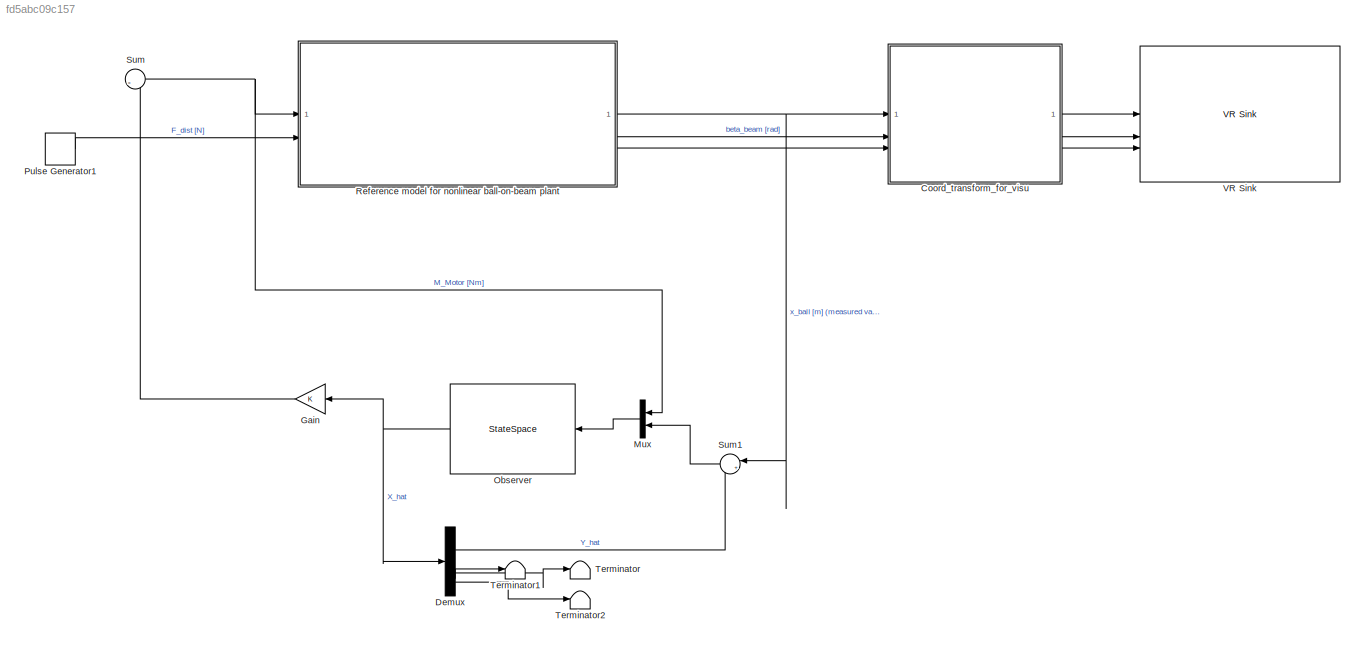
MODEL slx_fd5abc09c157
KIND model
CONFIG AbsTol = auto
CONFIG EnableMultiTasking = off
CONFIG FixedStep = auto
CONFIG MaxStep = auto
CONFIG MinStep = auto
CONFIG RelTol = 1e-3
CONFIG SampleTimeConstraint = Unconstrained
CONFIG SolverName = VariableStepAuto
CONFIG StartTime = 0.0
CONFIG StopTime = 20
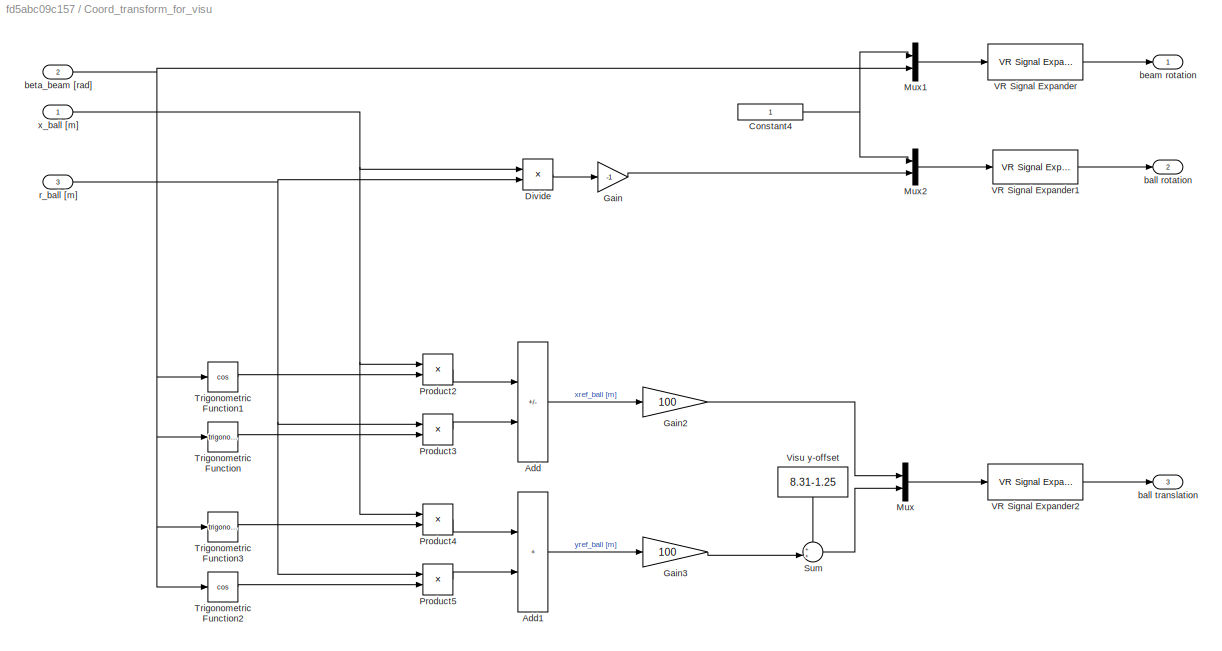
BLOCK [SubSystem] Coord_transform_for_visu
BLOCK [Sum] Coord_transform_for_visu/Add
  IconShape = rectangular
  Inputs = +-
BLOCK [Sum] Coord_transform_for_visu/Add1
  IconShape = rectangular
BLOCK [Constant] Coord_transform_for_visu/Constant4
  NameLocation = top
BLOCK [Product] Coord_transform_for_visu/Divide
  Inputs = */
BLOCK [Gain] Coord_transform_for_visu/Gain
  Gain = -1
BLOCK [Gain] Coord_transform_for_visu/Gain2
  Gain = 100
BLOCK [Gain] Coord_transform_for_visu/Gain3
  Gain = 100
BLOCK [Mux] Coord_transform_for_visu/Mux
  DisplayOption = bar
  Inputs = 2
BLOCK [Mux] Coord_transform_for_visu/Mux1
  DisplayOption = bar
  Inputs = 2
BLOCK [Mux] Coord_transform_for_visu/Mux2
  DisplayOption = bar
  Inputs = 2
BLOCK [Product] Coord_transform_for_visu/Product2
BLOCK [Product] Coord_transform_for_visu/Product3
BLOCK [Product] Coord_transform_for_visu/Product4
BLOCK [Product] Coord_transform_for_visu/Product5
BLOCK [Sum] Coord_transform_for_visu/Sum
  Inputs = ++|
BLOCK [Trigonometry] Coord_transform_for_visu/Trigonometric Function
BLOCK [Trigonometry] Coord_transform_for_visu/Trigonometric Function1
  Operator = cos
BLOCK [Trigonometry] Coord_transform_for_visu/Trigonometric Function2
  Operator = cos
BLOCK [Trigonometry] Coord_transform_for_visu/Trigonometric Function3
BLOCK [Reference] Coord_transform_for_visu/VR Signal Expander  REF=vrlib/VR Signal Expander
  SourceBlock = vrlib/VR Signal Expander
  SourceType = VR Signal Expander
BLOCK [Reference] Coord_transform_for_visu/VR Signal Expander1  REF=vrlib/VR Signal Expander
  SourceBlock = vrlib/VR Signal Expander
  SourceType = VR Signal Expander
BLOCK [Reference] Coord_transform_for_visu/VR Signal Expander2  REF=vrlib/VR Signal Expander
  SourceBlock = vrlib/VR Signal Expander
  SourceType = VR Signal Expander
BLOCK [Constant] Coord_transform_for_visu/Visu y-offset
  NameLocation = left
  Value = 8.31-1.25
BLOCK [Outport] Coord_transform_for_visu/ball rotation
  Port = 2
BLOCK [Outport] Coord_transform_for_visu/ball translation
  Port = 3
BLOCK [Outport] Coord_transform_for_visu/beam rotation
BLOCK [Inport] Coord_transform_for_visu/beta_beam [rad]
  Port = 2
BLOCK [Inport] Coord_transform_for_visu/r_ball [m]
  Port = 3
BLOCK [Inport] Coord_transform_for_visu/x_ball [m]
BLOCK [Demux] Demux
BLOCK [Gain] Gain
  Gain = K
  NameLocation = top
BLOCK [Mux] Mux
  DisplayOption = bar
  Inputs = 2
  NameLocation = top
BLOCK [StateSpace] Observer
  A = A_num
  B = [b_u_num Ll]
  C = eye(4,4)
  D = zeros(4,2)
  InitialCondition = [0,0,0,0]
  NameLocation = top
BLOCK [DiscretePulseGenerator] Pulse Generator1
  Amplitude = 1.25
  Period = 12
  PhaseDelay = 0.25
  PulseType = Time based
  PulseWidth = 0.25
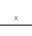
[diagram: Reference model for nonlinear ball-on-beam plant - part 1/4, top center region]
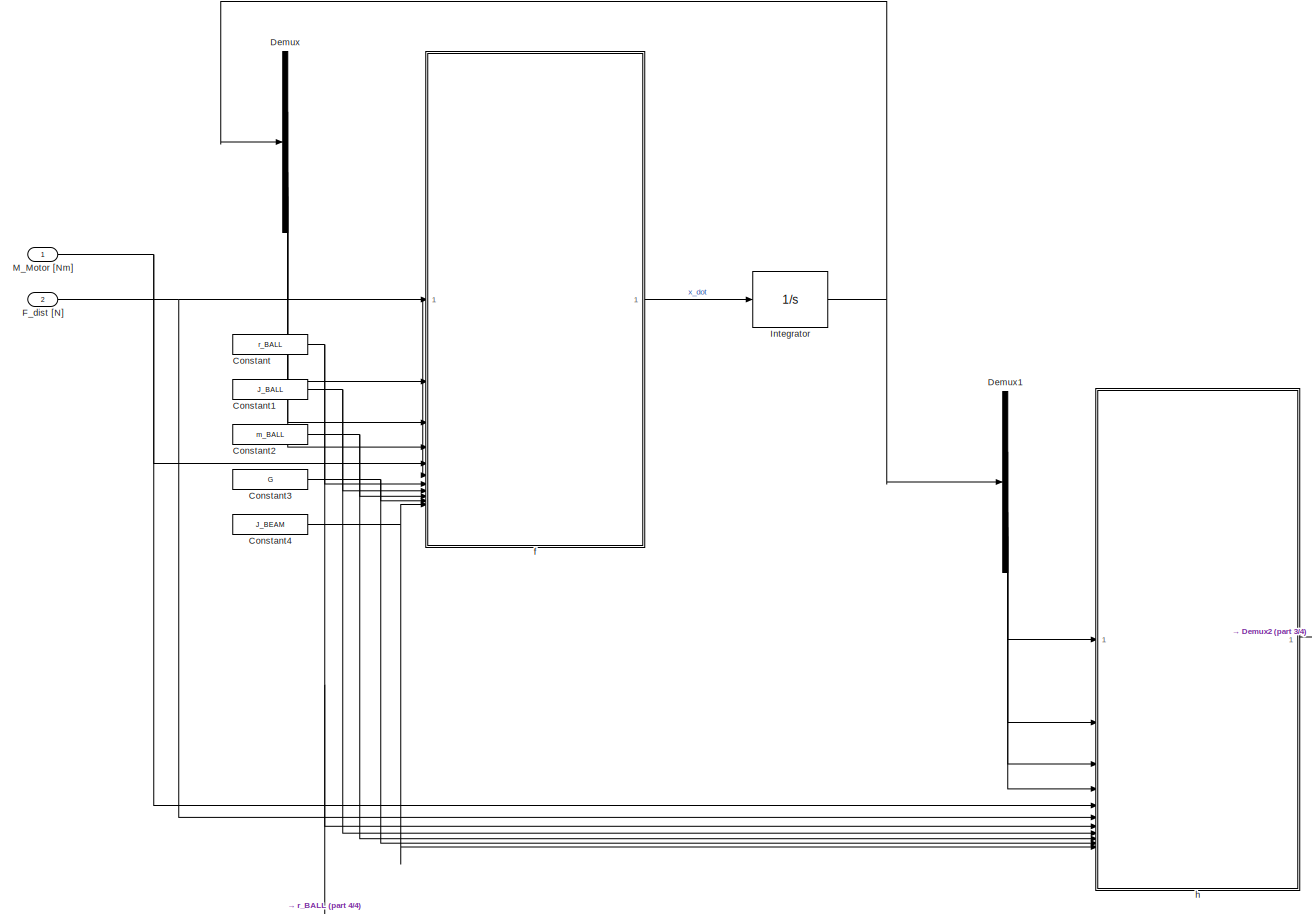
[diagram: Reference model for nonlinear ball-on-beam plant - part 2/4, most of the canvas]
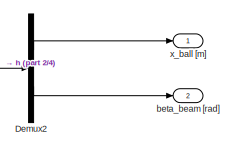
[diagram: Reference model for nonlinear ball-on-beam plant - part 3/4, middle right region]
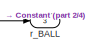
[diagram: Reference model for nonlinear ball-on-beam plant - part 4/4, bottom right region]
BLOCK [SubSystem] Reference model for nonlinear ball-on-beam plant
  MaskHideContents = on
BLOCK [Constant] Reference model for nonlinear ball-on-beam plant/Constant
  Value = r_BALL
BLOCK [Constant] Reference model for nonlinear ball-on-beam plant/Constant1
  Value = J_BALL
BLOCK [Constant] Reference model for nonlinear ball-on-beam plant/Constant2
  Value = m_BALL
BLOCK [Constant] Reference model for nonlinear ball-on-beam plant/Constant3
  Value = G
BLOCK [Constant] Reference model for nonlinear ball-on-beam plant/Constant4
  Value = J_BEAM
BLOCK [Demux] Reference model for nonlinear ball-on-beam plant/Demux
BLOCK [Demux] Reference model for nonlinear ball-on-beam plant/Demux1
BLOCK [Demux] Reference model for nonlinear ball-on-beam plant/Demux2
  Outputs = 2
BLOCK [Inport] Reference model for nonlinear ball-on-beam plant/F_dist [N]
  Port = 2
BLOCK [Integrator] Reference model for nonlinear ball-on-beam plant/Integrator
BLOCK [Inport] Reference model for nonlinear ball-on-beam plant/M_Motor [Nm]
BLOCK [Outport] Reference model for nonlinear ball-on-beam plant/beta_beam [rad]
  Port = 2
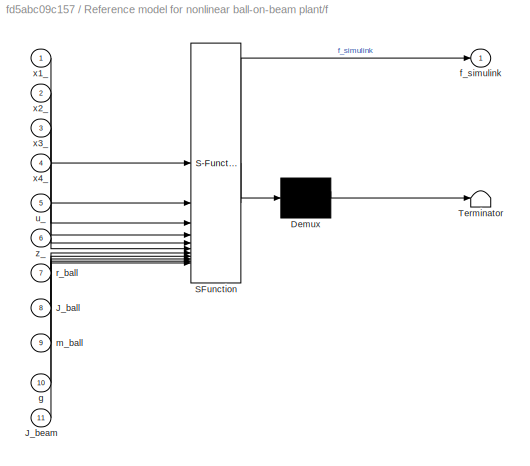
BLOCK [SubSystem] Reference model for nonlinear ball-on-beam plant/f
  ErrorFcn = Stateflow.Translate.translate
  PermitHierarchicalResolution = ExplicitOnly
  SFBlockType = MATLAB Function
  TreatAsAtomicUnit = on
BLOCK [Demux] Reference model for nonlinear ball-on-beam plant/f/ Demux 
  Outputs = 1
BLOCK [S-Function] Reference model for nonlinear ball-on-beam plant/f/ SFunction 
  EnableBusSupport = on
  FunctionName = sf_sfun
  PortCounts = [11 2]
  SFcnIsStateOwnerBlock = off
  SFunctionDeploymentMode = off
  Tag = Stateflow S-Function 2
BLOCK [Terminator] Reference model for nonlinear ball-on-beam plant/f/ Terminator 
BLOCK [Inport] Reference model for nonlinear ball-on-beam plant/f/J_ball
  Port = 8
BLOCK [Inport] Reference model for nonlinear ball-on-beam plant/f/J_beam
  Port = 11
BLOCK [Outport] Reference model for nonlinear ball-on-beam plant/f/f_simulink
BLOCK [Inport] Reference model for nonlinear ball-on-beam plant/f/g
  Port = 10
BLOCK [Inport] Reference model for nonlinear ball-on-beam plant/f/m_ball
  Port = 9
BLOCK [Inport] Reference model for nonlinear ball-on-beam plant/f/r_ball
  Port = 7
BLOCK [Inport] Reference model for nonlinear ball-on-beam plant/f/u_
  Port = 5
BLOCK [Inport] Reference model for nonlinear ball-on-beam plant/f/x1_
BLOCK [Inport] Reference model for nonlinear ball-on-beam plant/f/x2_
  Port = 2
BLOCK [Inport] Reference model for nonlinear ball-on-beam plant/f/x3_
  Port = 3
BLOCK [Inport] Reference model for nonlinear ball-on-beam plant/f/x4_
  Port = 4
BLOCK [Inport] Reference model for nonlinear ball-on-beam plant/f/z_
  Port = 6
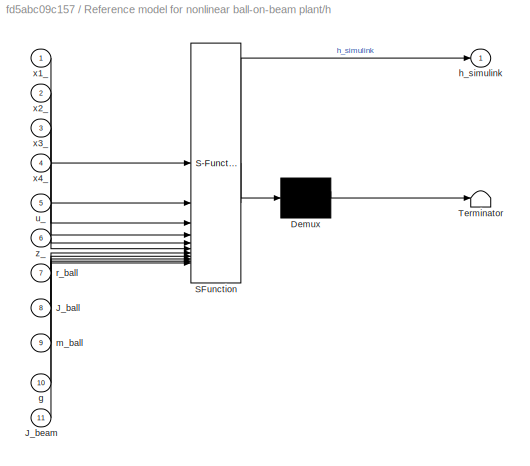
BLOCK [SubSystem] Reference model for nonlinear ball-on-beam plant/h
  ErrorFcn = Stateflow.Translate.translate
  PermitHierarchicalResolution = ExplicitOnly
  SFBlockType = MATLAB Function
  TreatAsAtomicUnit = on
BLOCK [Demux] Reference model for nonlinear ball-on-beam plant/h/ Demux 
  Outputs = 1
BLOCK [S-Function] Reference model for nonlinear ball-on-beam plant/h/ SFunction 
  EnableBusSupport = on
  FunctionName = sf_sfun
  PortCounts = [11 2]
  SFcnIsStateOwnerBlock = off
  SFunctionDeploymentMode = off
  Tag = Stateflow S-Function 1
BLOCK [Terminator] Reference model for nonlinear ball-on-beam plant/h/ Terminator 
BLOCK [Inport] Reference model for nonlinear ball-on-beam plant/h/J_ball
  Port = 8
BLOCK [Inport] Reference model for nonlinear ball-on-beam plant/h/J_beam
  Port = 11
BLOCK [Inport] Reference model for nonlinear ball-on-beam plant/h/g
  Port = 10
BLOCK [Outport] Reference model for nonlinear ball-on-beam plant/h/h_simulink
BLOCK [Inport] Reference model for nonlinear ball-on-beam plant/h/m_ball
  Port = 9
BLOCK [Inport] Reference model for nonlinear ball-on-beam plant/h/r_ball
  Port = 7
BLOCK [Inport] Reference model for nonlinear ball-on-beam plant/h/u_
  Port = 5
BLOCK [Inport] Reference model for nonlinear ball-on-beam plant/h/x1_
BLOCK [Inport] Reference model for nonlinear ball-on-beam plant/h/x2_
  Port = 2
BLOCK [Inport] Reference model for nonlinear ball-on-beam plant/h/x3_
  Port = 3
BLOCK [Inport] Reference model for nonlinear ball-on-beam plant/h/x4_
  Port = 4
BLOCK [Inport] Reference model for nonlinear ball-on-beam plant/h/z_
  Port = 6
BLOCK [Outport] Reference model for nonlinear ball-on-beam plant/r_BALL
  Port = 3
BLOCK [Outport] Reference model for nonlinear ball-on-beam plant/x_ball [m]
BLOCK [Sum] Sum
  Inputs = |-
BLOCK [Sum] Sum1
  Inputs = |+-
  NameLocation = top
BLOCK [Terminator] Terminator
BLOCK [Terminator] Terminator1
BLOCK [Terminator] Terminator2
BLOCK [Reference] VR Sink  REF=vrlib/VR Sink
  InstantiateOnLoad = on
  SourceBlock = vrlib/VR Sink
  SourceType = Virtual Reality Sink
LINE Coord_transform_for_visu/Add1:1 -> Coord_transform_for_visu/Gain3:1
LINE Coord_transform_for_visu/Add:1 -> Coord_transform_for_visu/Gain2:1
NET Coord_transform_for_visu/Constant4:1 -> Coord_transform_for_visu/Mux1:1, Coord_transform_for_visu/Mux2:1
LINE Coord_transform_for_visu/Divide:1 -> Coord_transform_for_visu/Gain:1
LINE Coord_transform_for_visu/Gain2:1 -> Coord_transform_for_visu/Mux:1
LINE Coord_transform_for_visu/Gain3:1 -> Coord_transform_for_visu/Sum:2
LINE Coord_transform_for_visu/Gain:1 -> Coord_transform_for_visu/Mux2:2
LINE Coord_transform_for_visu/Mux1:1 -> Coord_transform_for_visu/VR Signal Expander:1
LINE Coord_transform_for_visu/Mux2:1 -> Coord_transform_for_visu/VR Signal Expander1:1
LINE Coord_transform_for_visu/Mux:1 -> Coord_transform_for_visu/VR Signal Expander2:1
LINE Coord_transform_for_visu/Product2:1 -> Coord_transform_for_visu/Add:1
LINE Coord_transform_for_visu/Product3:1 -> Coord_transform_for_visu/Add:2
LINE Coord_transform_for_visu/Product4:1 -> Coord_transform_for_visu/Add1:1
LINE Coord_transform_for_visu/Product5:1 -> Coord_transform_for_visu/Add1:2
LINE Coord_transform_for_visu/Sum:1 -> Coord_transform_for_visu/Mux:2
LINE Coord_transform_for_visu/Trigonometric Function1:1 -> Coord_transform_for_visu/Product2:2
LINE Coord_transform_for_visu/Trigonometric Function2:1 -> Coord_transform_for_visu/Product5:2
LINE Coord_transform_for_visu/Trigonometric Function3:1 -> Coord_transform_for_visu/Product4:2
LINE Coord_transform_for_visu/Trigonometric Function:1 -> Coord_transform_for_visu/Product3:2
LINE Coord_transform_for_visu/VR Signal Expander1:1 -> Coord_transform_for_visu/ball rotation:1
LINE Coord_transform_for_visu/VR Signal Expander2:1 -> Coord_transform_for_visu/ball translation:1
LINE Coord_transform_for_visu/VR Signal Expander:1 -> Coord_transform_for_visu/beam rotation:1
LINE Coord_transform_for_visu/Visu y-offset:1 -> Coord_transform_for_visu/Sum:1
NET Coord_transform_for_visu/beta_beam [rad]:1 -> Coord_transform_for_visu/Mux1:2, Coord_transform_for_visu/Trigonometric Function1:1, Coord_transform_for_visu/Trigonometric Function2:1, Coord_transform_for_visu/Trigonometric Function3:1, Coord_transform_for_visu/Trigonometric Function:1
NET Coord_transform_for_visu/r_ball [m]:1 -> Coord_transform_for_visu/Divide:2, Coord_transform_for_visu/Product3:1, Coord_transform_for_visu/Product5:1
NET Coord_transform_for_visu/x_ball [m]:1 -> Coord_transform_for_visu/Divide:1, Coord_transform_for_visu/Product2:1, Coord_transform_for_visu/Product4:1
LINE Coord_transform_for_visu:1 -> VR Sink:1
LINE Coord_transform_for_visu:2 -> VR Sink:2
LINE Coord_transform_for_visu:3 -> VR Sink:3
LINE Demux:1 -> Sum1:2
LINE Demux:2 -> Terminator:1
LINE Demux:3 -> Terminator1:1
LINE Demux:4 -> Terminator2:1
LINE Gain:1 -> Sum:1
LINE Mux:1 -> Observer:1
NET Observer:1 -> Demux:1, Gain:1
LINE Pulse Generator1:1 -> Reference model for nonlinear ball-on-beam plant:2
NET Reference model for nonlinear ball-on-beam plant/Constant1:1 -> Reference model for nonlinear ball-on-beam plant/f:8, Reference model for nonlinear ball-on-beam plant/h:8
NET Reference model for nonlinear ball-on-beam plant/Constant2:1 -> Reference model for nonlinear ball-on-beam plant/f:9, Reference model for nonlinear ball-on-beam plant/h:9
NET Reference model for nonlinear ball-on-beam plant/Constant3:1 -> Reference model for nonlinear ball-on-beam plant/f:10, Reference model for nonlinear ball-on-beam plant/h:10
NET Reference model for nonlinear ball-on-beam plant/Constant4:1 -> Reference model for nonlinear ball-on-beam plant/f:11, Reference model for nonlinear ball-on-beam plant/h:11
NET Reference model for nonlinear ball-on-beam plant/Constant:1 -> Reference model for nonlinear ball-on-beam plant/f:7, Reference model for nonlinear ball-on-beam plant/h:7, Reference model for nonlinear ball-on-beam plant/r_BALL:1
LINE Reference model for nonlinear ball-on-beam plant/Demux1:1 -> Reference model for nonlinear ball-on-beam plant/h:1
LINE Reference model for nonlinear ball-on-beam plant/Demux1:2 -> Reference model for nonlinear ball-on-beam plant/h:2
LINE Reference model for nonlinear ball-on-beam plant/Demux1:3 -> Reference model for nonlinear ball-on-beam plant/h:3
LINE Reference model for nonlinear ball-on-beam plant/Demux1:4 -> Reference model for nonlinear ball-on-beam plant/h:4
LINE Reference model for nonlinear ball-on-beam plant/Demux2:1 -> Reference model for nonlinear ball-on-beam plant/x_ball [m]:1
LINE Reference model for nonlinear ball-on-beam plant/Demux2:2 -> Reference model for nonlinear ball-on-beam plant/beta_beam [rad]:1
LINE Reference model for nonlinear ball-on-beam plant/Demux:1 -> Reference model for nonlinear ball-on-beam plant/f:1
LINE Reference model for nonlinear ball-on-beam plant/Demux:2 -> Reference model for nonlinear ball-on-beam plant/f:2
LINE Reference model for nonlinear ball-on-beam plant/Demux:3 -> Reference model for nonlinear ball-on-beam plant/f:3
LINE Reference model for nonlinear ball-on-beam plant/Demux:4 -> Reference model for nonlinear ball-on-beam plant/f:4
NET Reference model for nonlinear ball-on-beam plant/F_dist [N]:1 -> Reference model for nonlinear ball-on-beam plant/f:6, Reference model for nonlinear ball-on-beam plant/h:6
NET Reference model for nonlinear ball-on-beam plant/Integrator:1 -> Reference model for nonlinear ball-on-beam plant/Demux1:1, Reference model for nonlinear ball-on-beam plant/Demux:1
NET Reference model for nonlinear ball-on-beam plant/M_Motor [Nm]:1 -> Reference model for nonlinear ball-on-beam plant/f:5, Reference model for nonlinear ball-on-beam plant/h:5
LINE Reference model for nonlinear ball-on-beam plant/f:1 -> Reference model for nonlinear ball-on-beam plant/Integrator:1
LINE Reference model for nonlinear ball-on-beam plant/h:1 -> Reference model for nonlinear ball-on-beam plant/Demux2:1
NET Reference model for nonlinear ball-on-beam plant:1 -> Coord_transform_for_visu:1, Sum1:1
LINE Reference model for nonlinear ball-on-beam plant:2 -> Coord_transform_for_visu:2
LINE Reference model for nonlinear ball-on-beam plant:3 -> Coord_transform_for_visu:3
LINE Sum1:1 -> Mux:2
NET Sum:1 -> Mux:1, Reference model for nonlinear ball-on-beam plant:1
note: NET lines group one-source signal fan-out (src -> all destinations, sorted); 1:1 wires keep LINE
CHART Reference model for nonlinear ball-on-beam plant/h states=1 transitions=1
  STATE_LABEL 'eML_blk_kernel()'
  STATE_LABEL 'SCRIPT:\nfunction h_simulink = h(x1_,x2_,x3_,x4_,u_,z_,r_ball,J_ball,m_ball,g,J_beam)\n%#codegen\n\n%    This function was generated by the Symbolic Math Toolbox version 8.7.\n%    28-Nov-2023 16:51:32\n\nh_simulink = [x1_;...\n    x3_];\n'
CHART Reference model for nonlinear ball-on-beam plant/f states=1 transitions=1
  STATE_LABEL 'eML_blk_kernel()'
  STATE_LABEL 'SCRIPT:\nfunction f_simulink = f(x1_,x2_,x3_,x4_,u_,z_,r_ball,J_ball,m_ball,g,J_beam)\n%#codegen\n\n%    This function was generated by the Symbolic Math Toolbox version 8.7.\n%    28-Nov-2023 16:51:32\n\nt2 = cos(x3_);\nt3 = sin(x3_);\nt4 = m_ball.^2;\nt5 = r_ball.^2;\nt6 = x1_.^2;\nt7 = x4_.^2;\nt8 = m_ball.*t6;\nt9 = J_beam+t8;\nt10 = 1.0./t9;\nf_simulink = [x2_;...\n    (r_ball.*t10.*(J_ball.*u_+J_beam.*r_ball...<+414ch>'
CHART  states=0 transitions=0
CHART  states=0 transitions=0
